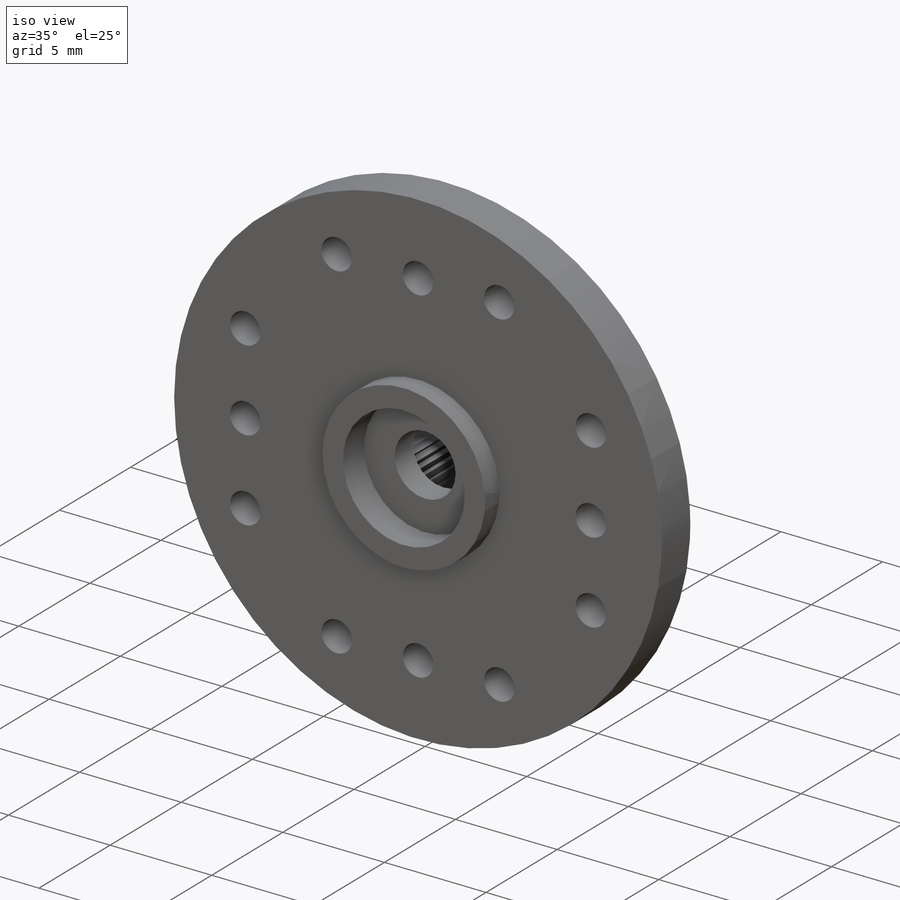
[diagram: iso view]
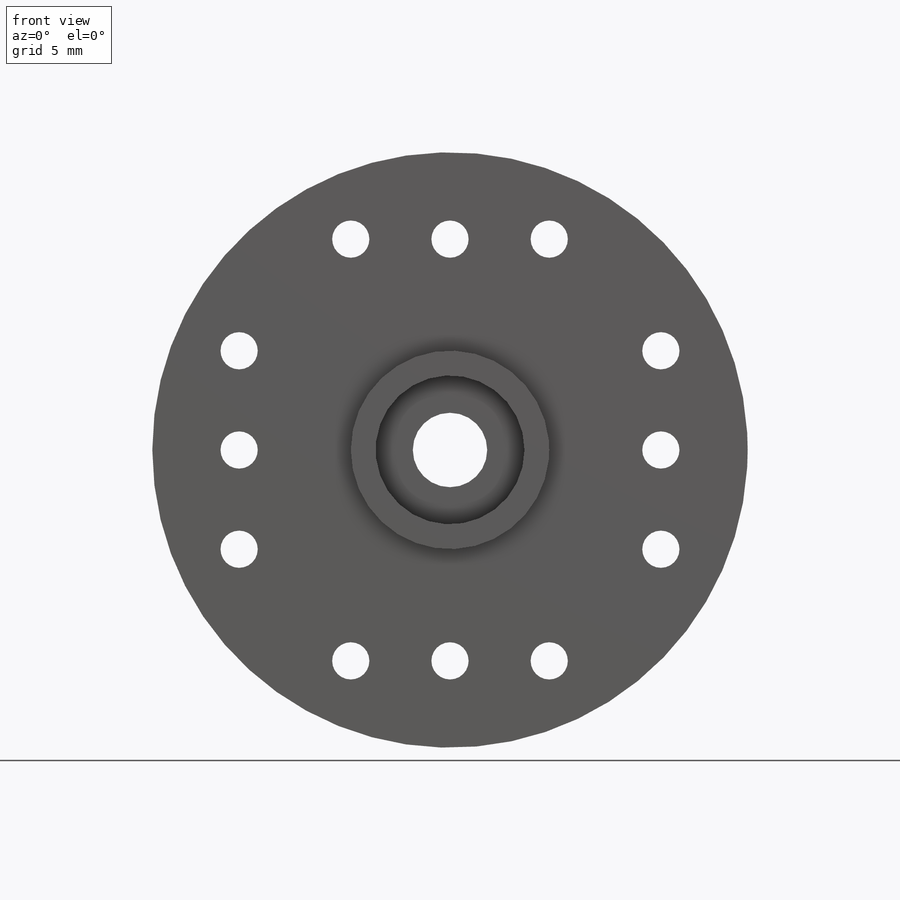
[diagram: front view]
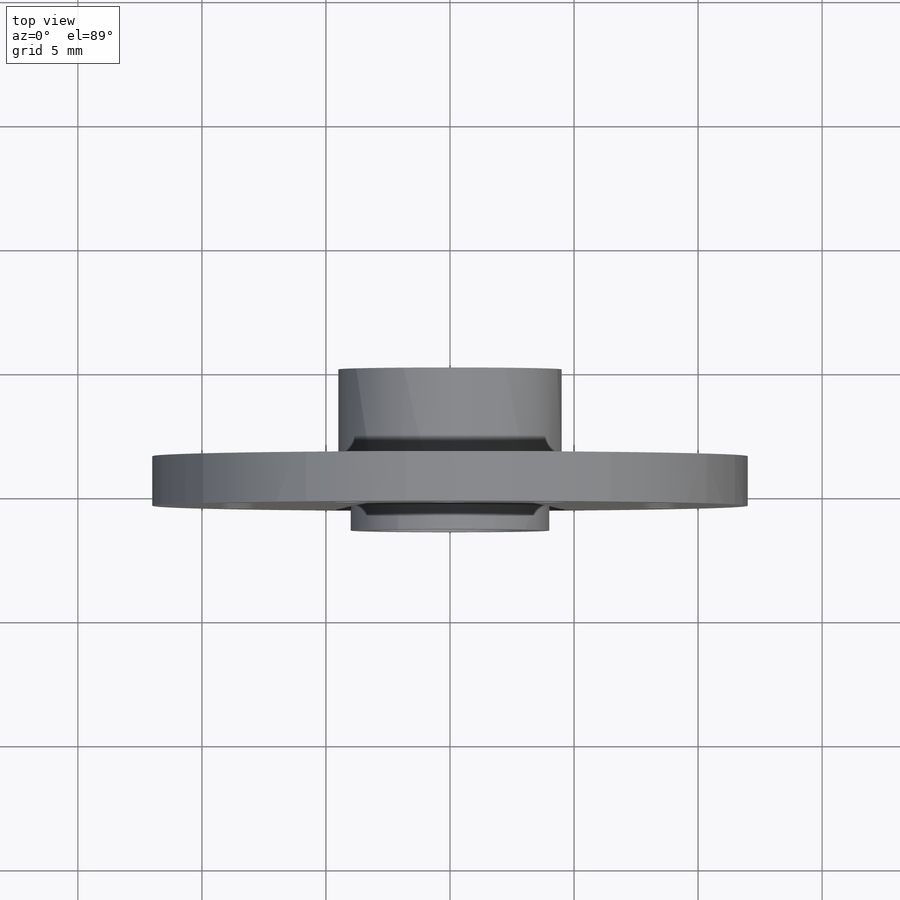
[diagram: top view]
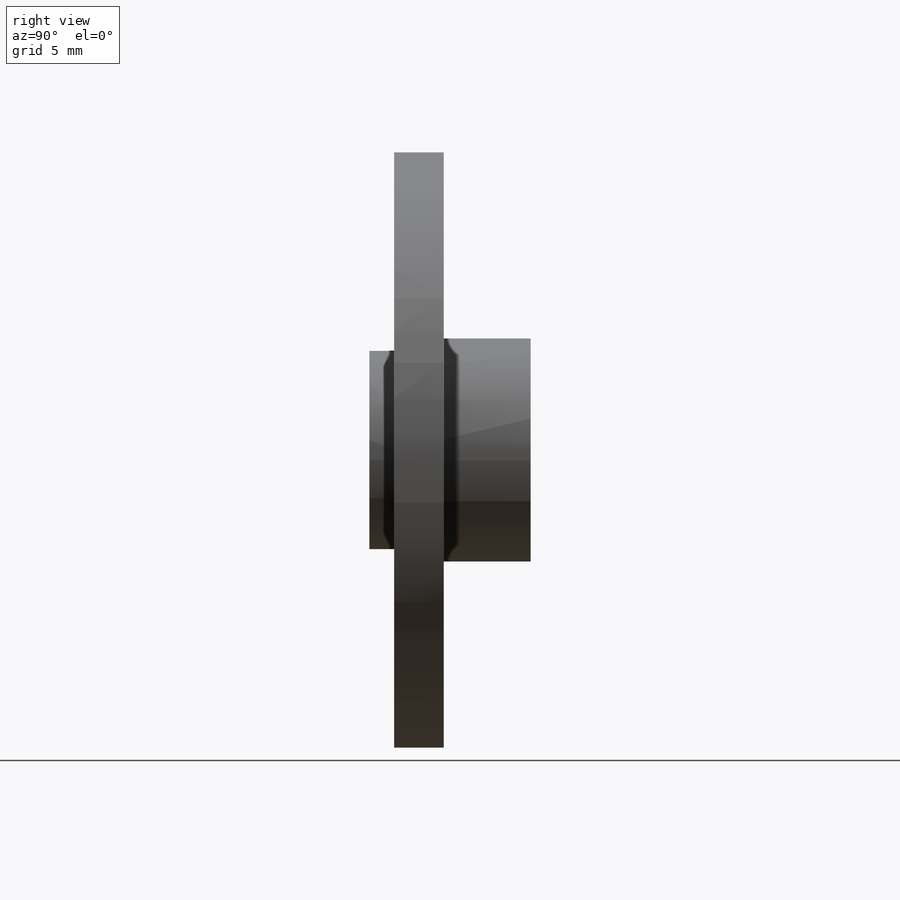
[diagram: right view]
SOLIDWORKS PART (.sldprt)
format: sldprt  version: not decoded by parser v0  size: 453,120 bytes
history: native  units: mm
features: sketch x9, plane x3, extrude x3, hole x2, cut_extrude x2, material x1, pattern_circular x1 (+10 scaffold rows collapsed)
feature tree (31):
  scaffold x10  (default folders/planes/origin — collapsed)
  material  "PE haute densité"
  plane  "Plan de face"
  plane  "Plan de dessus"
  plane  "Plan de droite"
  sketch  "Esquisse1"  dims[D1=9.0mm]
  extrude  "Boss.-Extru.1"  Depth=3.5mm
  sketch  "Esquisse2"  dims[D1=24.0mm]
  extrude  "Boss.-Extru.2"  Depth=2mm
  sketch  "Esquisse5"  dims[D1=8.0mm]
  extrude  "Boss.-Extru.3"  Depth=1mm
  hole  "Diamètre du perçage Ø3.0 (3)2"  Diameter=3mm Depth=6.5mm
  sketch  "Esquisse7"
  sketch  "Esquisse6"  dims[hole-wizard template sketch: 60 standard entries collapsed; hole parameters kept: c18.Profondeur du perçage jusqu'au prochain=6.5mm]
  sketch  "Esquisse8"  dims[D1=6.0mm]
  cut_extrude  "Enlèv. mat.-Extru.1"  Depth=1.5mm
  sketch  "Esquisse9"  dims[c1.D1=5.0mm c1.D2=6.0mm c1.D3=5.0mm c2.D1=~0.485115mm c3.D1=70.0deg c3.D4=~0.463914mm c4.D4=110.0deg c4.D5=50.0 c4.D6=50.0]
  cut_extrude  "Enlèv. mat.-Extru.2"  Depth=3.7mm
  hole  "Diamètre du perçage Ø1.5 (1.5)1"  Diameter=1.5mm Depth=5.5mm
  sketch  "Esquisse11"  dims[D1=8.5mm D2=4.0mm D3=4.0mm]
  sketch  "Esquisse10"  dims[hole-wizard template sketch: 59 standard entries collapsed; hole parameters kept: c18.Diamètre du perçage jusqu'au prochain=1.5mm c18.Profondeur du perçage jusqu'au prochain=5.5mm]
  pattern_circular  "Répétition circulaire1"  Count=4 Angle=360deg
decode coverage: 16 of 17 modeling features carry decoded parameters
note: ~ marks probable driven/reference dimensions
note: suppression state not decoded; provenance and decode notes live in map.json
